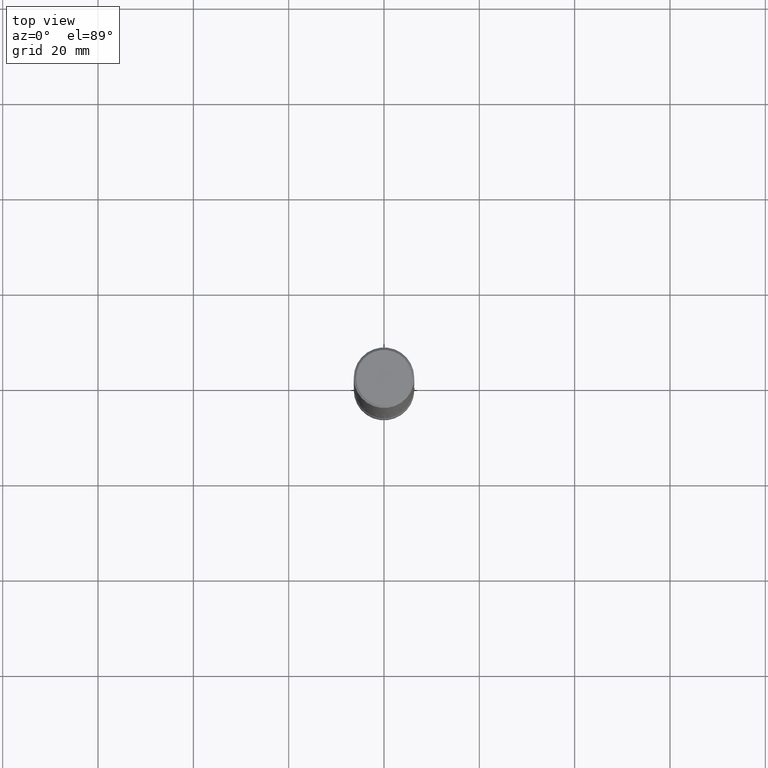
[diagram: clean part render]
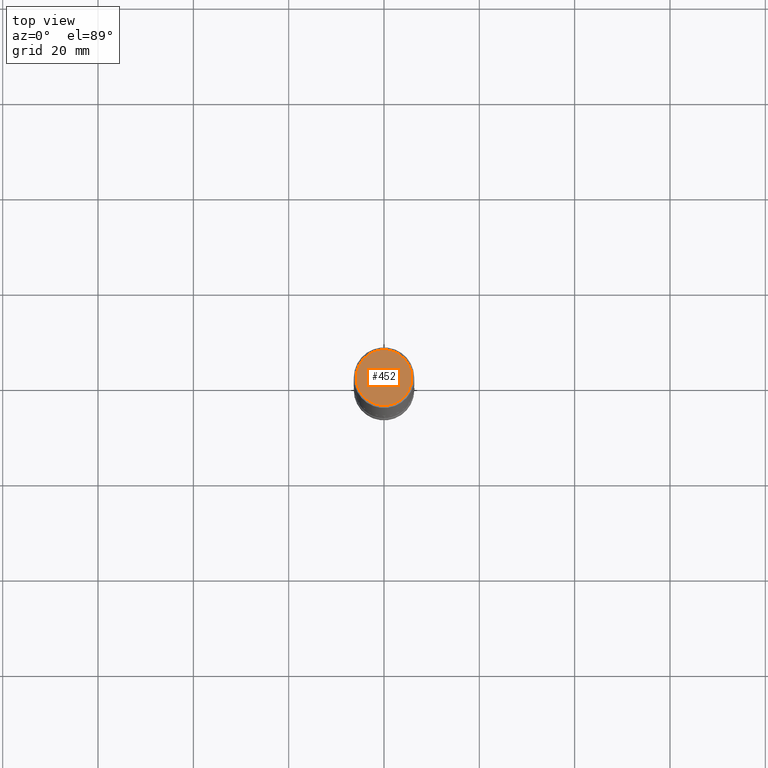
[diagram: same view with one face highlighted and labeled with its STEP entity id]
A machine part, top view. The second image highlights one B-rep face of the part: STEP entity #452.
In plain terms, the highlighted planar face has unit normal (0, -0, -1).
Its self-contained STEP definition (entity closure, byte-faithful):
#21 = DIRECTION ( 'NONE',  ( -2.445468806185136597E-29, 3.491481338843145583E-15, 1.000000000000000000 ) ) ;
#63 = AXIS2_PLACEMENT_3D ( 'NONE', #333, #582, #690 ) ;
#88 = DIRECTION ( 'NONE',  ( 1.000000000000000000, -6.982962677686266711E-15, 4.876225828469314487E-29 ) ) ;
#108 = CARTESIAN_POINT ( 'NONE',  ( 1.606081415867839292E-15, 0.2299999999999997324, -8.009064516888723911E-16 ) ) ;
#115 = CIRCLE ( 'NONE', #517, 0.2299999999999997324 ) ;
#158 = CARTESIAN_POINT ( 'NONE',  ( -0.2299999999999997324, 1.640996229256270744E-15, 4.268512490089056766E-18 ) ) ;
#183 = ORIENTED_EDGE ( 'NONE', *, *, #359, .T. ) ;
#282 = FACE_OUTER_BOUND ( 'NONE', #511, .T. ) ;
#330 = ORIENTED_EDGE ( 'NONE', *, *, #379, .T. ) ;
#333 = CARTESIAN_POINT ( 'NONE',  ( -1.043851414335219820E-46, 1.490343170380447200E-32, 4.268512490100411279E-18 ) ) ;
#359 = EDGE_CURVE ( 'NONE', #421, #567, #115, .T. ) ;
#379 = EDGE_CURVE ( 'NONE', #567, #421, #569, .T. ) ;
#387 = CARTESIAN_POINT ( 'NONE',  ( -1.043851414335219820E-46, 1.490343170380447200E-32, 4.268512490100411279E-18 ) ) ;
#389 = AXIS2_PLACEMENT_3D ( 'NONE', #108, #468, #538 ) ;
#421 = VERTEX_POINT ( 'NONE', #158 ) ;
#452 = ADVANCED_FACE ( 'NONE', ( #282 ), #648, .F. ) ;
#468 = DIRECTION ( 'NONE',  ( 2.438088387897960049E-29, -3.491481338843145188E-15, -1.000000000000000000 ) ) ;
#492 = CARTESIAN_POINT ( 'NONE',  ( 0.2299999999999997324, -1.681434332853597433E-15, 4.268512490111905999E-18 ) ) ;
#511 = EDGE_LOOP ( 'NONE', ( #183, #330 ) ) ;
#517 = AXIS2_PLACEMENT_3D ( 'NONE', #387, #21, #88 ) ;
#538 = DIRECTION ( 'NONE',  ( -1.000000000000000000, 6.982962677686265922E-15, -4.876176775795935793E-29 ) ) ;
#567 = VERTEX_POINT ( 'NONE', #492 ) ;
#569 = CIRCLE ( 'NONE', #63, 0.2299999999999997324 ) ;
#582 = DIRECTION ( 'NONE',  ( -2.445468806185136597E-29, 3.491481338843145583E-15, 1.000000000000000000 ) ) ;
#648 = PLANE ( 'NONE',  #389 ) ;
#690 = DIRECTION ( 'NONE',  ( 1.000000000000000000, -6.982962677686266711E-15, 4.876225828469314487E-29 ) ) ;